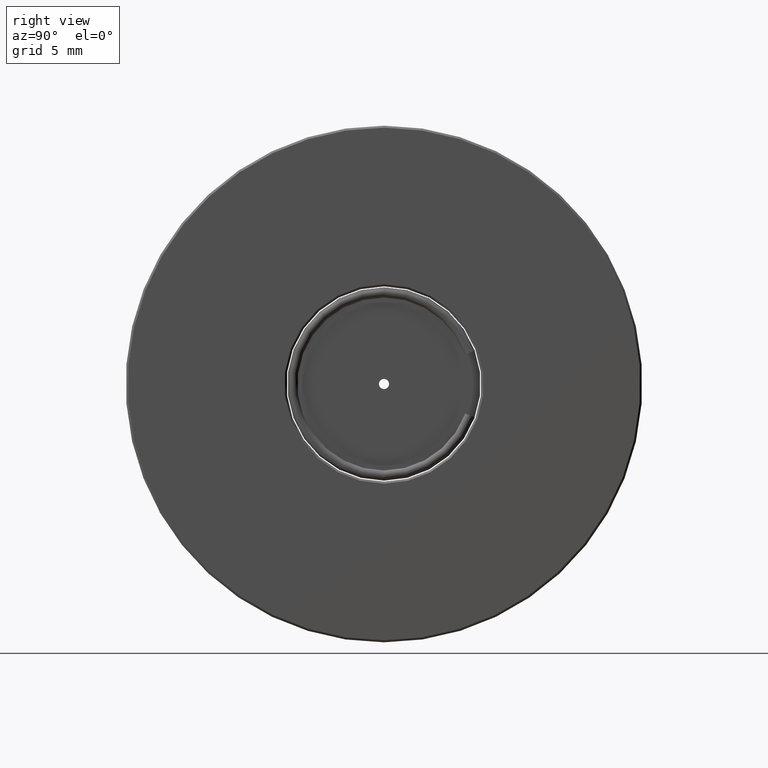
[diagram: clean part render]
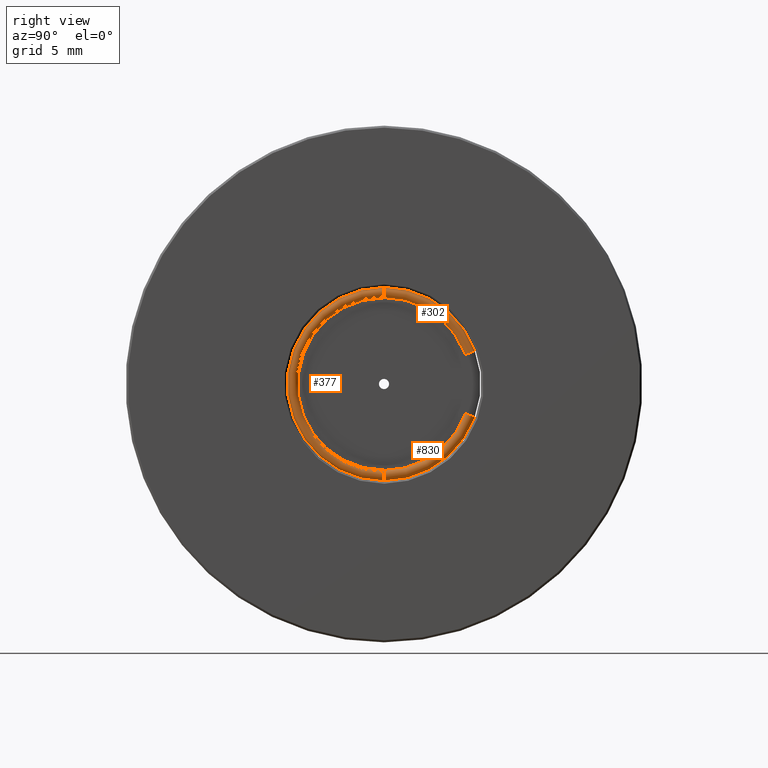
[diagram: same view with one multi-face feature highlighted, each face labeled with its STEP entity id]
A machine part, right view. The highlighted faces form ONE feature: a constant-radius fillet chain: 3 tangent blend faces with common blend radius 0.25 mm. The faces share edges in the B-rep.
Their STEP definitions:
[1] entity #830 (Torus):
#6 = CARTESIAN_POINT ( 'NONE',  ( -4.034863851253229328, 5.430452479329598070, 23.94641439060304933 ) ) ;
#14 = DIRECTION ( 'NONE',  ( 2.921639538487253472E-15, 1.000000000000000000, 0.0000000000000000000 ) ) ;
#42 = AXIS2_PLACEMENT_3D ( 'NONE', #701, #313, #67 ) ;
#64 = VERTEX_POINT ( 'NONE', #328 ) ;
#67 = DIRECTION ( 'NONE',  ( 3.469446951953611033E-15, -0.9396926207634005435, 0.3420201433875083574 ) ) ;
#102 = CARTESIAN_POINT ( 'NONE',  ( -4.034863851253246203, 1.436758840772518919, 20.64999999999998437 ) ) ;
#114 = DIRECTION ( 'NONE',  ( 3.061276722312011406E-15, 1.000000000000000000, 0.0000000000000000000 ) ) ;
#118 = AXIS2_PLACEMENT_3D ( 'NONE', #431, #119, #621 ) ;
#119 = DIRECTION ( 'NONE',  ( -2.997602166400238009E-15, -1.000000000000000000, 6.581526990068181500E-11 ) ) ;
#176 = ORIENTED_EDGE ( 'NONE', *, *, #470, .F. ) ;
#206 = EDGE_LOOP ( 'NONE', ( #176, #824, #553, #223 ) ) ;
#223 = ORIENTED_EDGE ( 'NONE', *, *, #494, .F. ) ;
#294 = AXIS2_PLACEMENT_3D ( 'NONE', #295, #297, #114 ) ;
#295 = CARTESIAN_POINT ( 'NONE',  ( -4.034863851253239986, 1.436758841085141514, 25.39999999999998437 ) ) ;
#297 = DIRECTION ( 'NONE',  ( 1.000000000000000000, -2.997602166487921476E-15, -1.332267629309052594E-15 ) ) ;
#306 = TOROIDAL_SURFACE ( 'NONE', #749, 4.500000000000001776, 0.2499999999999994726 ) ;
#310 = VERTEX_POINT ( 'NONE', #102 ) ;
#313 = DIRECTION ( 'NONE',  ( 2.305737067885818465E-15, -0.3420201433875043051, -0.9396926207634020978 ) ) ;
#317 = FACE_OUTER_BOUND ( 'NONE', #206, .T. ) ;
#328 = CARTESIAN_POINT ( 'NONE',  ( -4.034863851253229328, 5.900298789711298397, 23.77540431890929895 ) ) ;
#431 = CARTESIAN_POINT ( 'NONE',  ( -4.034863851253234657, 1.436758840788972647, 20.89999999999998437 ) ) ;
#468 = CIRCLE ( 'NONE', #118, 0.2500000000000002220 ) ;
#470 = EDGE_CURVE ( 'NONE', #310, #627, #468, .T. ) ;
#494 = EDGE_CURVE ( 'NONE', #627, #546, #559, .T. ) ;
#536 = EDGE_CURVE ( 'NONE', #64, #546, #570, .T. ) ;
#537 = CARTESIAN_POINT ( 'NONE',  ( -4.034863851253239986, 1.436758841085141514, 25.39999999999998437 ) ) ;
#540 = DIRECTION ( 'NONE',  ( -1.332267629506340790E-15, -6.581527172670668233E-11, -1.000000000000000000 ) ) ;
#546 = VERTEX_POINT ( 'NONE', #6 ) ;
#553 = ORIENTED_EDGE ( 'NONE', *, *, #536, .T. ) ;
#559 = CIRCLE ( 'NONE', #294, 4.250000000000001776 ) ;
#570 = CIRCLE ( 'NONE', #42, 0.2500000000000002220 ) ;
#621 = DIRECTION ( 'NONE',  ( 0.0000000000000000000, -6.581540867855999654E-11, -1.000000000000000000 ) ) ;
#627 = VERTEX_POINT ( 'NONE', #698 ) ;
#633 = CIRCLE ( 'NONE', #732, 4.750000000000000888 ) ;
#673 = DIRECTION ( 'NONE',  ( 1.000000000000000000, -2.997602166487921476E-15, -1.332267629309052594E-15 ) ) ;
#696 = EDGE_CURVE ( 'NONE', #310, #64, #633, .T. ) ;
#698 = CARTESIAN_POINT ( 'NONE',  ( -4.034863851253239986, 1.436758840805426596, 21.14999999999998437 ) ) ;
#701 = CARTESIAN_POINT ( 'NONE',  ( -4.034863851253261302, 5.665375634520459336, 23.86090935475617059 ) ) ;
#732 = AXIS2_PLACEMENT_3D ( 'NONE', #795, #786, #14 ) ;
#749 = AXIS2_PLACEMENT_3D ( 'NONE', #537, #673, #540 ) ;
#786 = DIRECTION ( 'NONE',  ( 1.000000000000000000, -2.997602166487921476E-15, -1.332267629309052594E-15 ) ) ;
#795 = CARTESIAN_POINT ( 'NONE',  ( -4.034863851253239986, 1.436758841085141514, 25.39999999999998437 ) ) ;
#824 = ORIENTED_EDGE ( 'NONE', *, *, #696, .T. ) ;
#830 = ADVANCED_FACE ( 'NONE', ( #317 ), #306, .T. ) ;
[2] entity #377 (Torus):
#25 = CARTESIAN_POINT ( 'NONE',  ( -4.034863851253245315, 1.436758841381310825, 29.89999999999998437 ) ) ;
#56 = ORIENTED_EDGE ( 'NONE', *, *, #470, .T. ) ;
#76 = EDGE_LOOP ( 'NONE', ( #773, #397, #56, #436 ) ) ;
#102 = CARTESIAN_POINT ( 'NONE',  ( -4.034863851253246203, 1.436758840772518919, 20.64999999999998437 ) ) ;
#118 = AXIS2_PLACEMENT_3D ( 'NONE', #431, #119, #621 ) ;
#119 = DIRECTION ( 'NONE',  ( -2.997602166400238009E-15, -1.000000000000000000, 6.581526990068181500E-11 ) ) ;
#129 = CARTESIAN_POINT ( 'NONE',  ( -4.034863851253237321, 1.436758841364856876, 29.64999999999998437 ) ) ;
#154 = EDGE_CURVE ( 'NONE', #688, #310, #748, .T. ) ;
#161 = EDGE_CURVE ( 'NONE', #688, #618, #716, .T. ) ;
#174 = TOROIDAL_SURFACE ( 'NONE', #692, 4.500000000000001776, 0.2499999999999994726 ) ;
#202 = DIRECTION ( 'NONE',  ( 1.000000000000000000, -2.997602166487921476E-15, -1.332267629309052594E-15 ) ) ;
#231 = DIRECTION ( 'NONE',  ( 1.000000000000000000, -2.997602166487921476E-15, -1.332267629309052594E-15 ) ) ;
#279 = DIRECTION ( 'NONE',  ( 0.0000000000000000000, 6.581540867855999654E-11, 1.000000000000000000 ) ) ;
#285 = AXIS2_PLACEMENT_3D ( 'NONE', #398, #202, #733 ) ;
#293 = CARTESIAN_POINT ( 'NONE',  ( -4.034863851253239986, 1.436758841085141514, 25.39999999999998437 ) ) ;
#310 = VERTEX_POINT ( 'NONE', #102 ) ;
#345 = DIRECTION ( 'NONE',  ( -1.332267629506340790E-15, -6.581527172670668233E-11, -1.000000000000000000 ) ) ;
#377 = ADVANCED_FACE ( 'NONE', ( #596 ), #174, .T. ) ;
#397 = ORIENTED_EDGE ( 'NONE', *, *, #154, .T. ) ;
#398 = CARTESIAN_POINT ( 'NONE',  ( -4.034863851253239986, 1.436758841085141514, 25.39999999999998437 ) ) ;
#431 = CARTESIAN_POINT ( 'NONE',  ( -4.034863851253234657, 1.436758840788972647, 20.89999999999998437 ) ) ;
#436 = ORIENTED_EDGE ( 'NONE', *, *, #450, .F. ) ;
#450 = EDGE_CURVE ( 'NONE', #618, #627, #453, .T. ) ;
#453 = CIRCLE ( 'NONE', #737, 4.250000000000001776 ) ;
#468 = CIRCLE ( 'NONE', #118, 0.2500000000000002220 ) ;
#470 = EDGE_CURVE ( 'NONE', #310, #627, #468, .T. ) ;
#596 = FACE_OUTER_BOUND ( 'NONE', #76, .T. ) ;
#610 = AXIS2_PLACEMENT_3D ( 'NONE', #25, #660, #279 ) ;
#612 = DIRECTION ( 'NONE',  ( 1.000000000000000000, -2.997602166487921476E-15, -1.332267629309052594E-15 ) ) ;
#618 = VERTEX_POINT ( 'NONE', #129 ) ;
#621 = DIRECTION ( 'NONE',  ( 0.0000000000000000000, -6.581540867855999654E-11, -1.000000000000000000 ) ) ;
#627 = VERTEX_POINT ( 'NONE', #698 ) ;
#658 = CARTESIAN_POINT ( 'NONE',  ( -4.034863851253234657, 1.436758841397764552, 30.14999999999998437 ) ) ;
#660 = DIRECTION ( 'NONE',  ( 2.997602166400237614E-15, 1.000000000000000000, -6.581539236536173561E-11 ) ) ;
#688 = VERTEX_POINT ( 'NONE', #658 ) ;
#692 = AXIS2_PLACEMENT_3D ( 'NONE', #293, #612, #345 ) ;
#698 = CARTESIAN_POINT ( 'NONE',  ( -4.034863851253239986, 1.436758840805426596, 21.14999999999998437 ) ) ;
#716 = CIRCLE ( 'NONE', #610, 0.2500000000000002220 ) ;
#733 = DIRECTION ( 'NONE',  ( 2.921639538487253472E-15, 1.000000000000000000, 0.0000000000000000000 ) ) ;
#737 = AXIS2_PLACEMENT_3D ( 'NONE', #828, #231, #765 ) ;
#748 = CIRCLE ( 'NONE', #285, 4.750000000000000888 ) ;
#765 = DIRECTION ( 'NONE',  ( 3.061276722312011406E-15, 1.000000000000000000, 0.0000000000000000000 ) ) ;
#773 = ORIENTED_EDGE ( 'NONE', *, *, #161, .F. ) ;
#828 = CARTESIAN_POINT ( 'NONE',  ( -4.034863851253239986, 1.436758841085141514, 25.39999999999998437 ) ) ;
[3] entity #302 (Torus):
#25 = CARTESIAN_POINT ( 'NONE',  ( -4.034863851253245315, 1.436758841381310825, 29.89999999999998437 ) ) ;
#59 = AXIS2_PLACEMENT_3D ( 'NONE', #401, #465, #89 ) ;
#60 = CIRCLE ( 'NONE', #238, 0.2500000000000000000 ) ;
#62 = VERTEX_POINT ( 'NONE', #77 ) ;
#69 = DIRECTION ( 'NONE',  ( 3.469446951953614189E-15, -0.9396926208084209753, -0.3420201432638159122 ) ) ;
#77 = CARTESIAN_POINT ( 'NONE',  ( -4.034863851253225775, 5.900298789925161103, 27.02459568050305094 ) ) ;
#88 = CARTESIAN_POINT ( 'NONE',  ( -4.034863851253239986, 1.436758841085141514, 25.39999999999998437 ) ) ;
#89 = DIRECTION ( 'NONE',  ( 2.921639538487253472E-15, 1.000000000000000000, 0.0000000000000000000 ) ) ;
#100 = EDGE_LOOP ( 'NONE', ( #503, #280, #186, #588 ) ) ;
#110 = AXIS2_PLACEMENT_3D ( 'NONE', #88, #275, #735 ) ;
#122 = CIRCLE ( 'NONE', #464, 4.250000000000001776 ) ;
#129 = CARTESIAN_POINT ( 'NONE',  ( -4.034863851253237321, 1.436758841364856876, 29.64999999999998437 ) ) ;
#134 = EDGE_CURVE ( 'NONE', #62, #167, #60, .T. ) ;
#161 = EDGE_CURVE ( 'NONE', #688, #618, #716, .T. ) ;
#165 = FACE_OUTER_BOUND ( 'NONE', #100, .T. ) ;
#167 = VERTEX_POINT ( 'NONE', #474 ) ;
#186 = ORIENTED_EDGE ( 'NONE', *, *, #161, .T. ) ;
#238 = AXIS2_PLACEMENT_3D ( 'NONE', #521, #440, #69 ) ;
#242 = EDGE_CURVE ( 'NONE', #62, #688, #571, .T. ) ;
#275 = DIRECTION ( 'NONE',  ( 1.000000000000000000, -2.997602166487921476E-15, -1.332267629309052594E-15 ) ) ;
#279 = DIRECTION ( 'NONE',  ( 0.0000000000000000000, 6.581540867855999654E-11, 1.000000000000000000 ) ) ;
#280 = ORIENTED_EDGE ( 'NONE', *, *, #242, .T. ) ;
#302 = ADVANCED_FACE ( 'NONE', ( #165 ), #353, .T. ) ;
#353 = TOROIDAL_SURFACE ( 'NONE', #110, 4.500000000000001776, 0.2499999999999994726 ) ;
#401 = CARTESIAN_POINT ( 'NONE',  ( -4.034863851253239986, 1.436758841085141514, 25.39999999999998437 ) ) ;
#440 = DIRECTION ( 'NONE',  ( -1.054662389422715826E-17, 0.3420201432638126371, -0.9396926208084220855 ) ) ;
#464 = AXIS2_PLACEMENT_3D ( 'NONE', #653, #711, #595 ) ;
#465 = DIRECTION ( 'NONE',  ( 1.000000000000000000, -2.997602166487921476E-15, -1.332267629309052594E-15 ) ) ;
#474 = CARTESIAN_POINT ( 'NONE',  ( -4.034863851253226663, 5.430452479520951670, 26.85358560887114621 ) ) ;
#503 = ORIENTED_EDGE ( 'NONE', *, *, #134, .F. ) ;
#521 = CARTESIAN_POINT ( 'NONE',  ( -4.034863851253261302, 5.665375634723053722, 26.93909064468709857 ) ) ;
#571 = CIRCLE ( 'NONE', #59, 4.750000000000000888 ) ;
#588 = ORIENTED_EDGE ( 'NONE', *, *, #647, .F. ) ;
#595 = DIRECTION ( 'NONE',  ( 3.061276722312011406E-15, 1.000000000000000000, 0.0000000000000000000 ) ) ;
#610 = AXIS2_PLACEMENT_3D ( 'NONE', #25, #660, #279 ) ;
#618 = VERTEX_POINT ( 'NONE', #129 ) ;
#647 = EDGE_CURVE ( 'NONE', #167, #618, #122, .T. ) ;
#653 = CARTESIAN_POINT ( 'NONE',  ( -4.034863851253239986, 1.436758841085141514, 25.39999999999998437 ) ) ;
#658 = CARTESIAN_POINT ( 'NONE',  ( -4.034863851253234657, 1.436758841397764552, 30.14999999999998437 ) ) ;
#660 = DIRECTION ( 'NONE',  ( 2.997602166400237614E-15, 1.000000000000000000, -6.581539236536173561E-11 ) ) ;
#688 = VERTEX_POINT ( 'NONE', #658 ) ;
#711 = DIRECTION ( 'NONE',  ( 1.000000000000000000, -2.997602166487921476E-15, -1.332267629309052594E-15 ) ) ;
#716 = CIRCLE ( 'NONE', #610, 0.2500000000000002220 ) ;
#735 = DIRECTION ( 'NONE',  ( -1.332267629506340790E-15, -6.581527172670668233E-11, -1.000000000000000000 ) ) ;